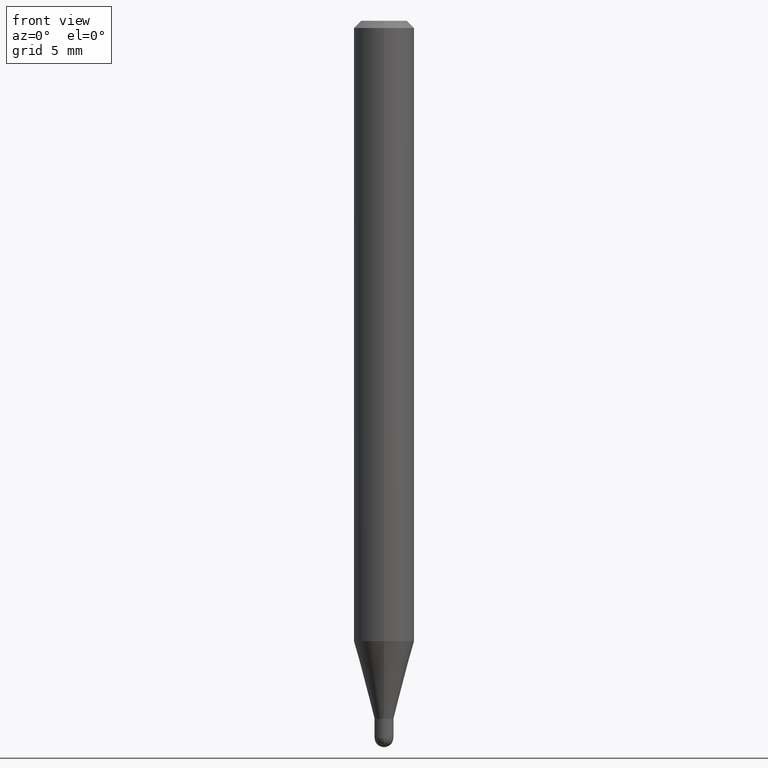
[diagram: clean part render]
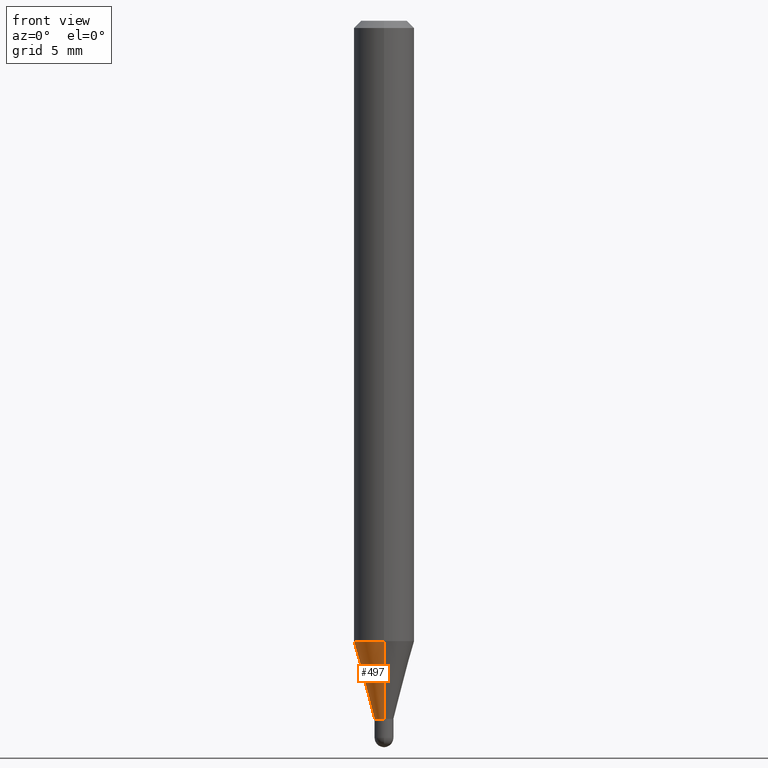
[diagram: same view with one face highlighted and labeled with its STEP entity id]
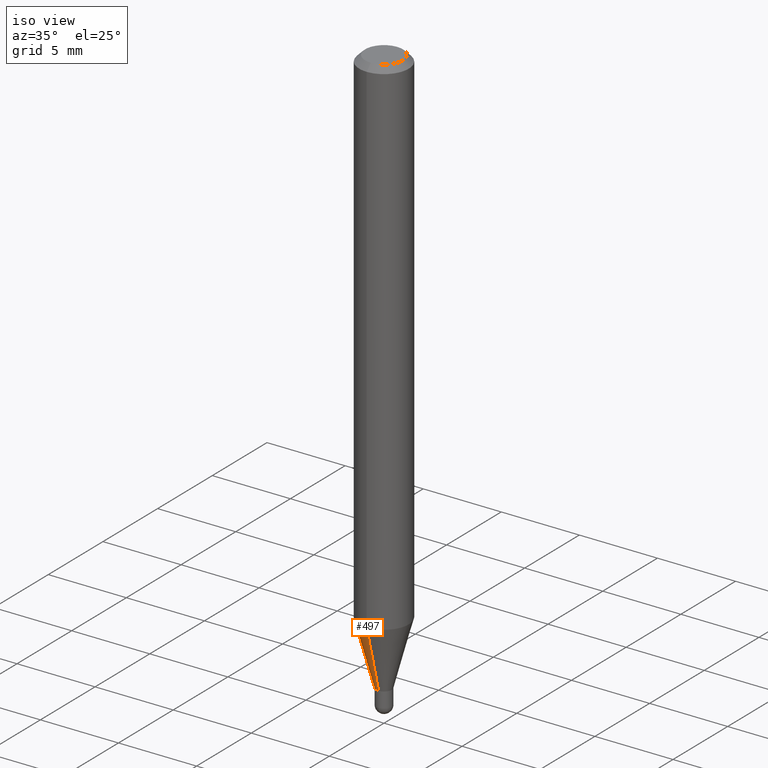
[diagram: same view with one face highlighted and labeled with its STEP entity id]
A machine part, front view. The second image highlights one B-rep face of the part: STEP entity #497.
A second angle (iso view) of the same face is appended — the face is thin or edge-on in the first view.
In plain terms, the highlighted conical surface has half-angle 15 deg.
Its self-contained STEP definition (entity closure, byte-faithful):
#8 = EDGE_LOOP ( 'NONE', ( #157, #43, #170, #509 ) ) ;
#23 = EDGE_CURVE ( 'NONE', #234, #284, #141, .T. ) ;
#25 = CARTESIAN_POINT ( 'NONE',  ( 4.440892098500936776E-16, 0.06249999999999551054, -1.281021815274543618 ) ) ;
#43 = ORIENTED_EDGE ( 'NONE', *, *, #424, .T. ) ;
#61 = CARTESIAN_POINT ( 'NONE',  ( 3.132714662716507044E-29, -4.472641174246900354E-15, -1.281021815274543396 ) ) ;
#63 = CIRCLE ( 'NONE', #482, 0.06250000000000000000 ) ;
#64 = AXIS2_PLACEMENT_3D ( 'NONE', #253, #416, #451 ) ;
#72 = CARTESIAN_POINT ( 'NONE',  ( -1.361677722148463895E-16, -0.01950000000000495434, -1.441500000000000448 ) ) ;
#78 = DIRECTION ( 'NONE',  ( -2.445481119339966983E-29, 3.491463705704607270E-15, 1.000000000000000000 ) ) ;
#91 = EDGE_CURVE ( 'NONE', #284, #286, #63, .T. ) ;
#96 = DIRECTION ( 'NONE',  ( 1.839019923739647253E-15, 0.2588190451025315642, 0.9659258262890653146 ) ) ;
#110 = CARTESIAN_POINT ( 'NONE',  ( 2.913225216616741220E-16, 0.01949999999999488948, -1.441500000000000448 ) ) ;
#138 = DIRECTION ( 'NONE',  ( -6.982962677686265922E-15, -1.000000000000000000, 4.370956789862821150E-15 ) ) ;
#141 = LINE ( 'NONE', #258, #174 ) ;
#143 = FACE_OUTER_BOUND ( 'NONE', #8, .T. ) ;
#150 = DIRECTION ( 'NONE',  ( -1.807323732225376682E-15, -0.2588190451025248473, 0.9659258262890670910 ) ) ;
#151 = CONICAL_SURFACE ( 'NONE', #64, 0.01949999999999992017, 0.2617993877991571794 ) ;
#157 = ORIENTED_EDGE ( 'NONE', *, *, #23, .F. ) ;
#170 = ORIENTED_EDGE ( 'NONE', *, *, #265, .T. ) ;
#174 = VECTOR ( 'NONE', #96, 39.37007874015748854 ) ;
#226 = VERTEX_POINT ( 'NONE', #72 ) ;
#227 = CARTESIAN_POINT ( 'NONE',  ( -1.361677722148463895E-16, -0.01950000000000495434, -1.441500000000000448 ) ) ;
#230 = CARTESIAN_POINT ( 'NONE',  ( -4.364351673553604601E-16, -0.06250000000000449640, -1.281021815274543174 ) ) ;
#234 = VERTEX_POINT ( 'NONE', #110 ) ;
#245 = CIRCLE ( 'NONE', #255, 0.01949999999999992017 ) ;
#253 = CARTESIAN_POINT ( 'NONE',  ( 3.525161033528563545E-29, -5.032944931773192069E-15, -1.441500000000000448 ) ) ;
#255 = AXIS2_PLACEMENT_3D ( 'NONE', #440, #78, #289 ) ;
#258 = CARTESIAN_POINT ( 'NONE',  ( 1.385558334732541966E-16, 0.01949999999999488948, -1.441500000000000448 ) ) ;
#263 = DIRECTION ( 'NONE',  ( -2.445481119339966983E-29, 3.491463705704607270E-15, 1.000000000000000000 ) ) ;
#265 = EDGE_CURVE ( 'NONE', #226, #286, #495, .T. ) ;
#284 = VERTEX_POINT ( 'NONE', #25 ) ;
#286 = VERTEX_POINT ( 'NONE', #230 ) ;
#289 = DIRECTION ( 'NONE',  ( -6.982962677686266711E-15, -1.000000000000000000, 0.000000000000000000 ) ) ;
#369 = VECTOR ( 'NONE', #150, 39.37007874015748143 ) ;
#416 = DIRECTION ( 'NONE',  ( -2.445481119339966983E-29, 3.491463705704607270E-15, 1.000000000000000000 ) ) ;
#424 = EDGE_CURVE ( 'NONE', #234, #226, #245, .T. ) ;
#440 = CARTESIAN_POINT ( 'NONE',  ( 3.525161033528563545E-29, -5.032944931773192069E-15, -1.441500000000000448 ) ) ;
#451 = DIRECTION ( 'NONE',  ( -6.982962677686266711E-15, -1.000000000000000000, 0.000000000000000000 ) ) ;
#482 = AXIS2_PLACEMENT_3D ( 'NONE', #61, #263, #138 ) ;
#495 = LINE ( 'NONE', #227, #369 ) ;
#497 = ADVANCED_FACE ( 'NONE', ( #143 ), #151, .T. ) ;
#509 = ORIENTED_EDGE ( 'NONE', *, *, #91, .F. ) ;